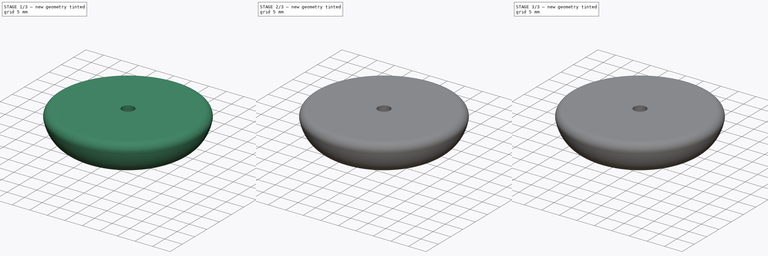
[diagram: build sequence overview — one tinted view per stage of 3, left to right]
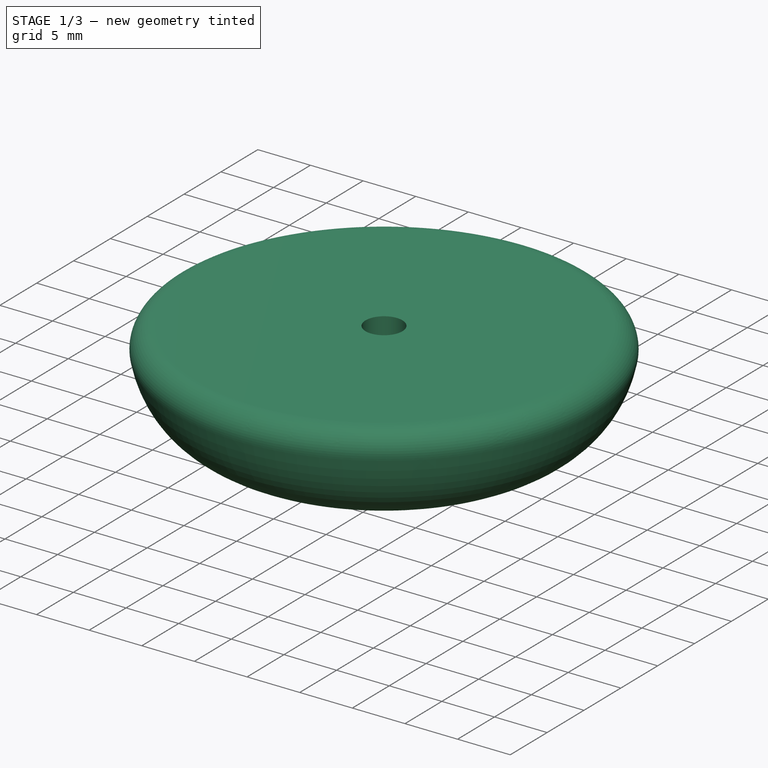
[diagram: stage 1 of 3 — iso view after this stage's code; geometry added in this stage tinted green]
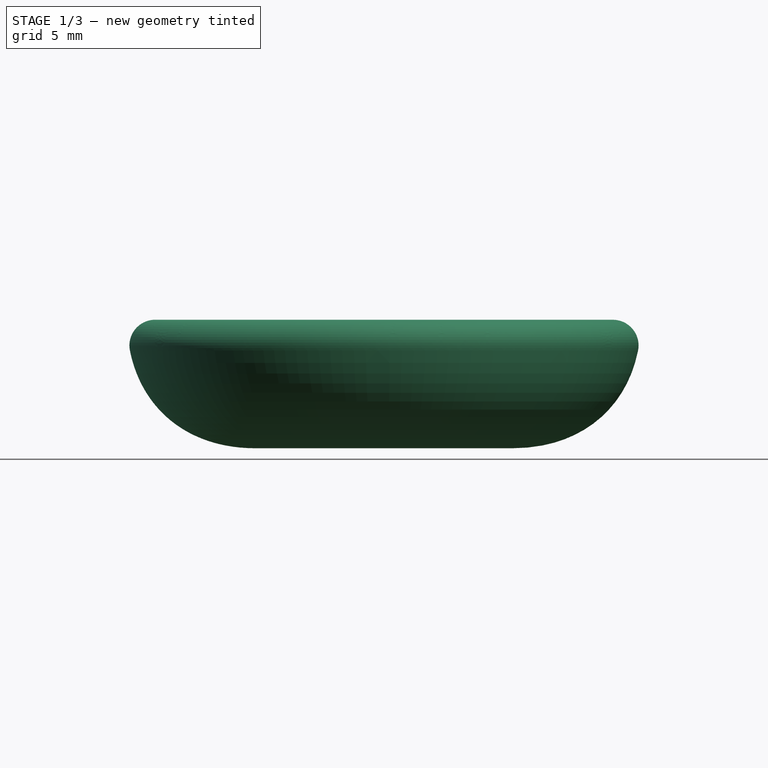
[diagram: stage 1 of 3 — front view after this stage's code; geometry added in this stage tinted green]
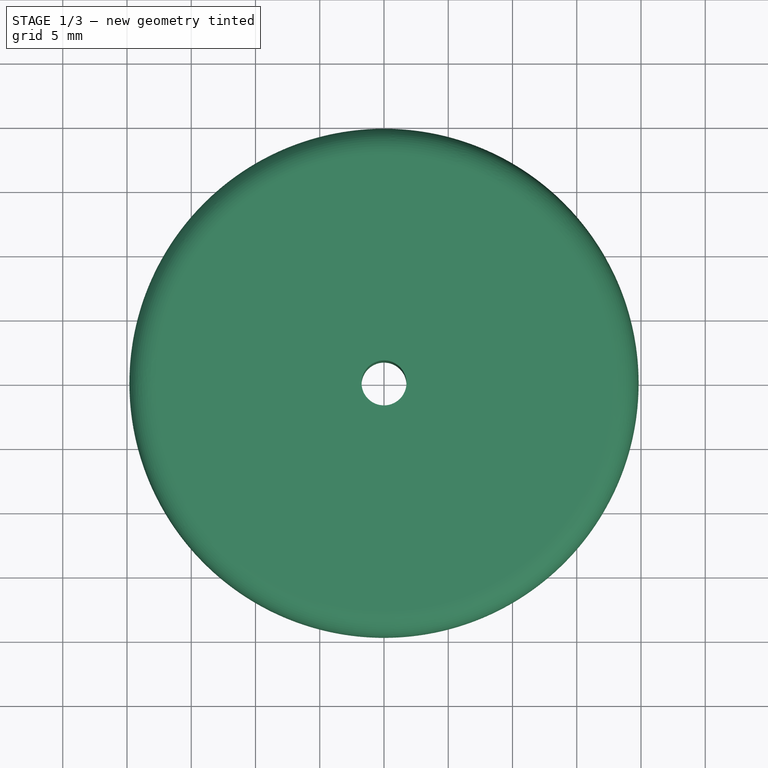
[diagram: stage 1 of 3 — top view after this stage's code; geometry added in this stage tinted green]
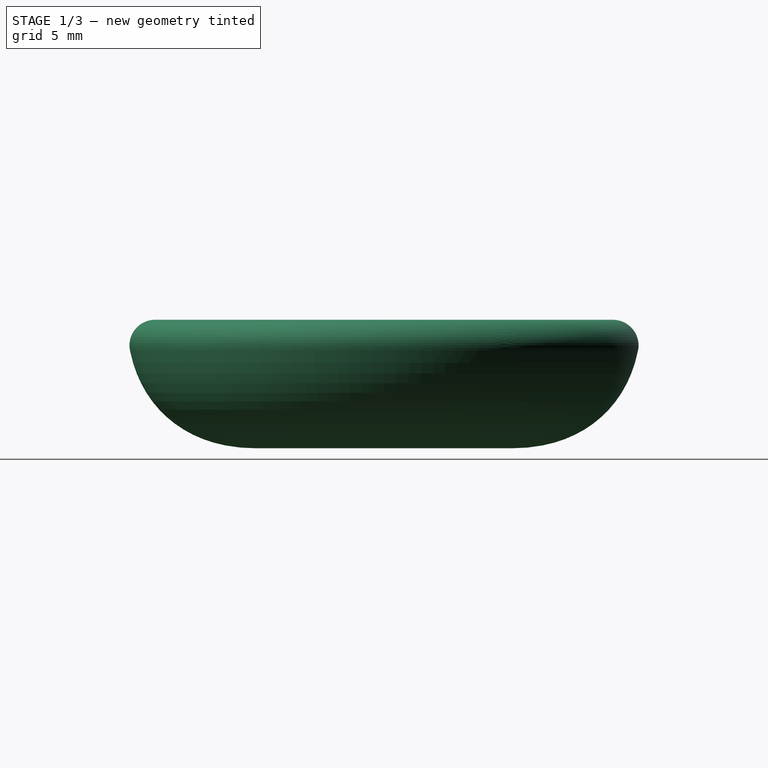
[diagram: stage 1 of 3 — right view after this stage's code; geometry added in this stage tinted green]
FCSTD DOCUMENT  (FreeCAD 0.18.4R)
Label: YoYo
License: All rights reserved
LicenseURL: http://en.wikipedia.org/wiki/All_rights_reserved
objects: Sketcher::SketchObject×5, PartDesign::Body×4, PartDesign::Pocket×3, PartDesign::FeatureBase×2, PartDesign::Revolution×1, Spreadsheet::Sheet×1, PartDesign::Pad×1, PartDesign::Fillet×1, App::Part×1
note: 22 computed .brp shape members not serialized (recipe doc carries the construction recipe); baked Part::Feature solids carry a one-line shape summary decoded from their .brp

FEATURE [Sketcher::SketchObject] Sketch
  MapMode = 5
  Placement = pos=(0,0,0) rot=(1,0,0;1.5708rad)
  Support = -> [XZ_Plane001]
  sketch-geometry (12):
    g0: LineSegment StartX=0 StartY=10 StartZ=0 EndX=-20 EndY=10 EndZ=0
    g1: LineSegment StartX=0 StartY=10 StartZ=0 EndX=0 EndY=0 EndZ=0
    g2: LineSegment StartX=0 StartY=0 StartZ=0 EndX=-10 EndY=0 EndZ=0
    g3-g6: Circle [constr] x4 (B-spline internal-alignment scaffolding for g7; pole/knot coordinates omitted)
    g7: BSplineCurve PolesCount=4 KnotsCount=2 Degree=3 IsPeriodic=0
    g8: GeomPoint [constr] X=-10 Y=0 Z=0
    g9: GeomPoint [constr] X=-20 Y=10 Z=0
    g10: LineSegment [constr] StartX=-16 StartY=0 StartZ=0 EndX=-10 EndY=0 EndZ=0
    g11: LineSegment [constr] StartX=-20 StartY=10 StartZ=0 EndX=-20 EndY=4 EndZ=0
  constraints (26):
    c: Coincident(g2,g1)
    c: Horizontal(g2)
    c: Coincident(g7,g2)
    c: Radius(g3) = 2
    c: Equal(g3,g4)
    c: Equal(g3,g5)
    c: Equal(g3,g6)
    c: Coincident(g7,g0)
    c: InternalAlignment(g3-g6 -> g7) x4
    c: InternalAlignment(g8,g7)
    c: InternalAlignment(g9,g7)
    c: Coincident(g10,g4)
    c: Coincident(g10,g2)
    c: Horizontal(g10)
    c: Coincident(g11,g0)
    c: Coincident(g11,g5)
    c: Vertical(g11)
    c: DistanceX(g0,g1) = 20
    c: DistanceX(g2,g2) = 10
    c: Equal(g10,g11)
    c: DistanceX(g10,g10) = 6
    c: Horizontal(g0)
    c: DistanceY(g1,g0) = 10  'Height'
    c: Coincident(g1,g-1)
    c: Vertical(g1)
    c: Coincident(g1,g0)
FEATURE [PartDesign::Revolution] Revolution
  Angle = 360
  Axis = (0,-2e-16,1)
  Base = (0,0,0)
  Placement = pos=(0,0,0) rot=(1,0,0;1.5708rad)
  Profile = -> Sketch
  ReferenceAxis = -> Sketch [V_Axis]
FEATURE [Sketcher::SketchObject] Sketch001
  MapMode = 5
  Support = -> [XY_Plane001]
  expr: Constraints[1] = Screws.M3Radius
  sketch-geometry (1):
    g0: Circle CenterX=0 CenterY=0 CenterZ=0 NormalX=0 NormalY=0 NormalZ=1 AngleXU=0 Radius=1.75
  constraints (2):
    c: Coincident(g0,g-1)
    c: Radius(g0) = 1.75
FEATURE [PartDesign::Pocket] Pocket
  BaseFeature = -> Revolution
  Length = 5
  Length2 = 100
  Placement = pos=(0,0,0) rot=(1,0,0;1.5708rad)
  Profile = -> Sketch001
  Reversed = true
  Type = 1
FEATURE [PartDesign::Body] Body003
  Group = -> [Sketch004,Pad]
  Origin = -> Origin004
  Tip = -> Pad
FEATURE [PartDesign::Fillet] Fillet
  Base = -> Pocket [Edge1]
  BaseFeature = -> Pocket
  Placement = pos=(0,0,0) rot=(1,0,0;1.5708rad)
  Radius = 2
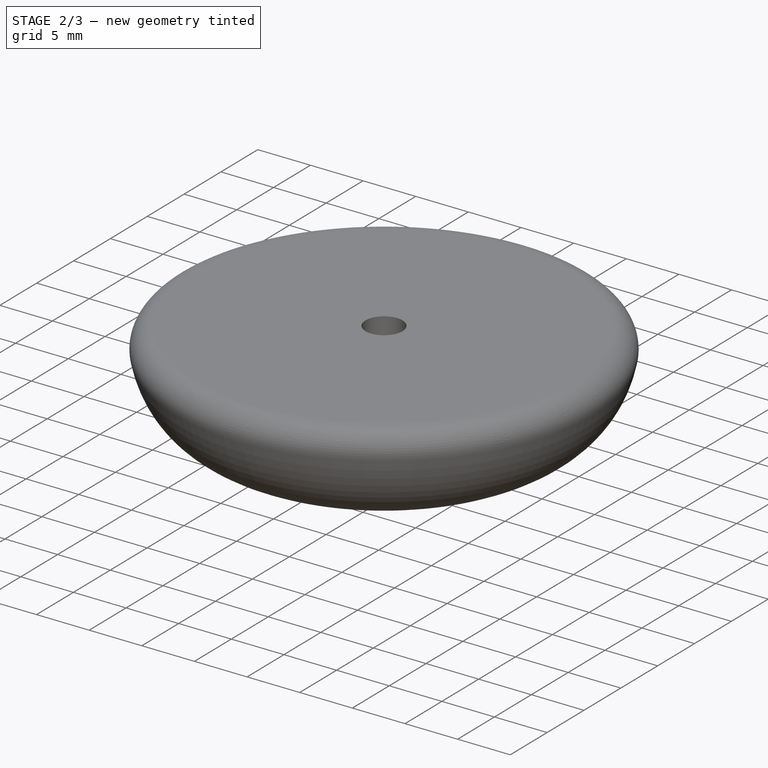
[diagram: stage 2 of 3 — iso view after this stage's code; geometry added in this stage tinted green]
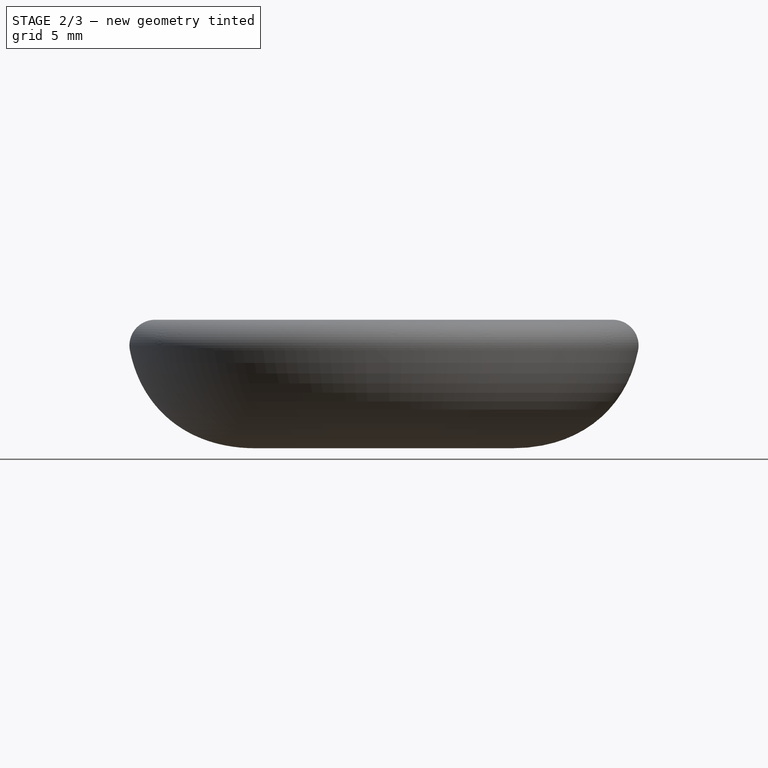
[diagram: stage 2 of 3 — front view after this stage's code; geometry added in this stage tinted green]
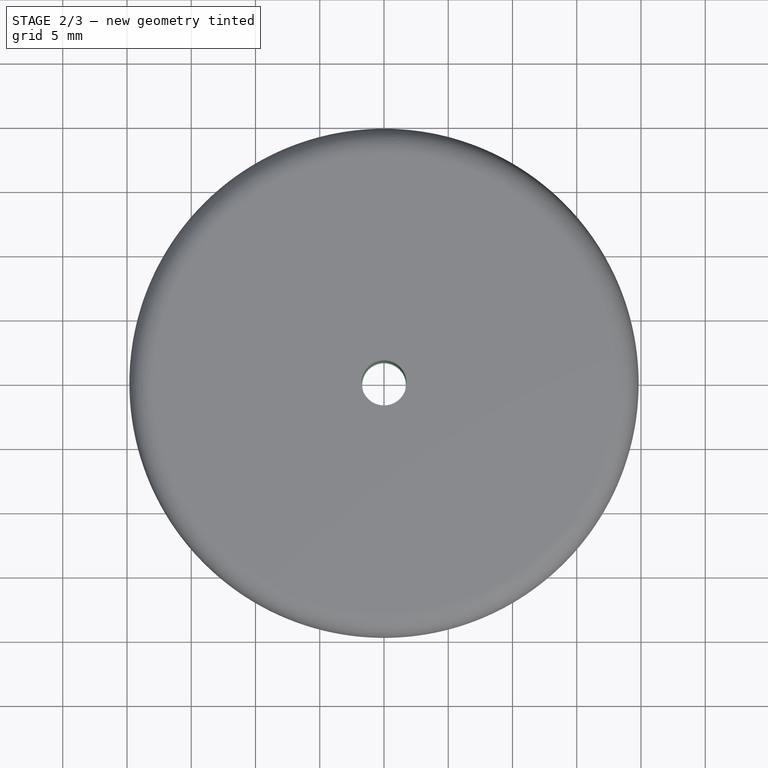
[diagram: stage 2 of 3 — top view after this stage's code; geometry added in this stage tinted green]
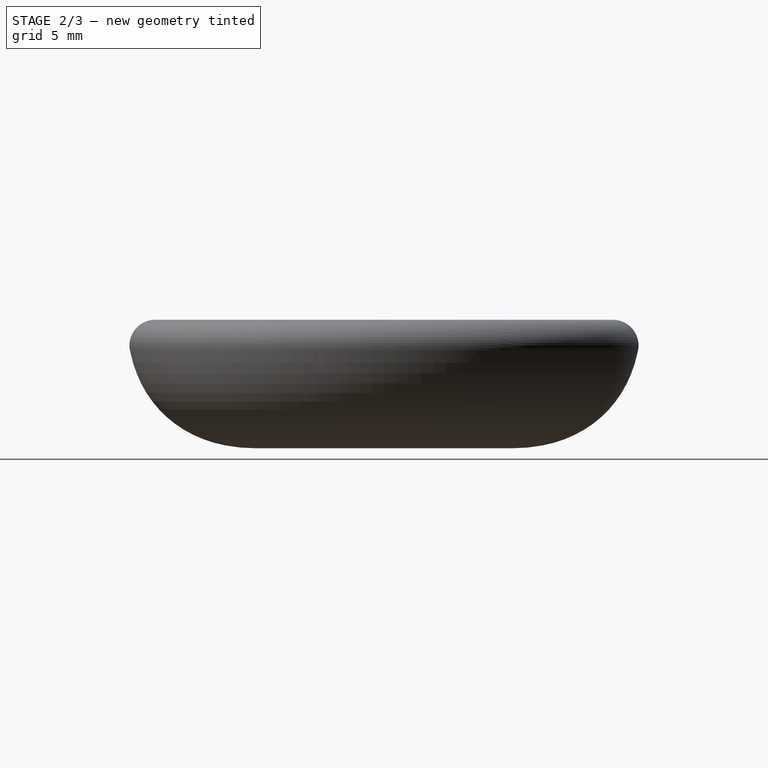
[diagram: stage 2 of 3 — right view after this stage's code; geometry added in this stage tinted green]
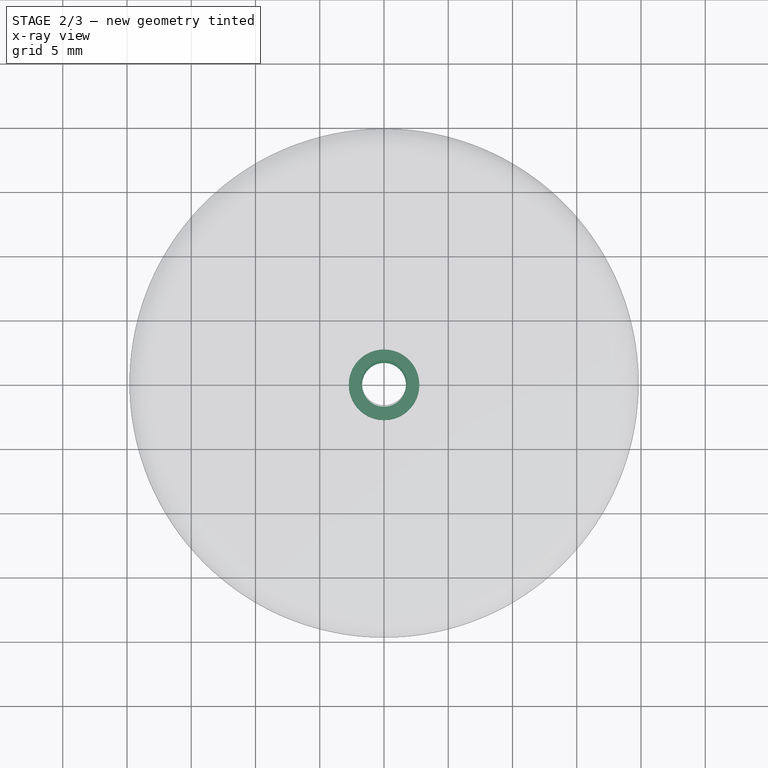
[diagram: stage 2 of 3 — x-ray composite at the top view; earlier geometry ghosted, this stage's added geometry solid]
FEATURE [Spreadsheet::Sheet] Spreadsheet001  label="Screws"
  cells = B2=M3Radius; C2(M3Radius)==1.75mm; B3=M3HeadRadius; C3(M3HeadRadius)==3mm; B4=M3HeadHeight; C4(M3HeadHeight)==2.95mm; B5=M3WasherRadius; C5(M3WasherRadius)==3.7mm; B6=M3WasherHeight; C6(M3WasherHeight)==0.5mm; B7=M3NutRadius; C7(M3NutRadius)==3.4mm; B8=M3NutHeight; C8(M3NutHeight)==2.75mm; B9=M3NylocNutHeight; C9(M3NylocNutHeight)==4.1mm; B10=M3NutDuctWidth; C10(M3NutDuctWidth)==5.85mm; B11=M4Radius; C11(M4Radius)==2.2mm; B12=M4HeadRadius; C12(M4HeadRadius)==3.75mm; B13=M4HeadHeight; C13(M4HeadHeight)==4mm; B14=M4WasherRadius; C14(M4WasherRadius)==4.7mm; B15=M4NutRadius; C15(M4NutRadius)==4.25mm; B16=M4NutHeight; C16(M4NutHeight)==3.3mm; B17=M4NutDuctWidth; C17(M4NutDuctWidth)==7.1mm; B18=M5Radius; C18(M5Radius)==2.66mm; B19=M5HeadRadius; C19(M5HeadRadius)==4.5mm; B20=M5HeadHeight; C20(M5HeadHeight)==5mm; B21=M5NutRadius; C21(M5NutRadius)==4.75mm; B22=M5NutHeight; C22(M5NutHeight)==4mm; B24=M6Radius; C24(M6Radius)==3.15mm; B25=M6HeadRadius; C25(M6HeadRadius)==5.5mm; B32=
FEATURE [Sketcher::SketchObject] Sketch002
  MapMode = 5
  Support = -> [XY_Plane002]
  expr: Constraints[1] = Screws.M3HeadRadius
  sketch-geometry (1):
    g0: Circle CenterX=0 CenterY=0 CenterZ=0 NormalX=0 NormalY=0 NormalZ=1 AngleXU=0 Radius=3
  constraints (2):
    c: Coincident(g0,g-1)
    c: Radius(g0) = 3
FEATURE [Sketcher::SketchObject] Sketch003
  MapMode = 5
  Support = -> [XY_Plane003]
  expr: Constraints[19] = Screws.M3NutRadius
  sketch-geometry (7):
    g0: LineSegment StartX=3.4 StartY=0 StartZ=0 EndX=1.7 EndY=2.94449 EndZ=0
    g1: LineSegment StartX=1.7 StartY=2.94449 StartZ=0 EndX=-1.7 EndY=2.94449 EndZ=0
    g2: LineSegment StartX=-1.7 StartY=2.94449 StartZ=0 EndX=-3.4 EndY=0 EndZ=0
    g3: LineSegment StartX=-3.4 StartY=0 StartZ=0 EndX=-1.7 EndY=-2.94449 EndZ=0
    g4: LineSegment StartX=-1.7 StartY=-2.94449 StartZ=0 EndX=1.7 EndY=-2.94449 EndZ=0
    g5: LineSegment StartX=1.7 StartY=-2.94449 StartZ=0 EndX=3.4 EndY=0 EndZ=0
    g6: Circle [constr] CenterX=0 CenterY=0 CenterZ=0 NormalX=0 NormalY=0 NormalZ=1 AngleXU=0 Radius=3.4
  constraints (16):
    c: Coincident(g0,g1)
    c: Coincident(g1,g2)
    c: Coincident(g2,g3)
    c: Coincident(g3,g4)
    c: Coincident(g4,g5)
    c: Coincident(g5,g0)
    c: Equal(g0, g1-g5) x5
    c: PointOnObject(g0,g6)
    c: PointOnObject(g1,g6)
    c: PointOnObject(g2,g6)
    c: PointOnObject(g3,g6)
    c: PointOnObject(g4,g6)
    c: PointOnObject(g5,g6)
    c: Coincident(g6,g-1)
    c: Horizontal(g1)
    c: Radius(g6) = 3.4
FEATURE [Sketcher::SketchObject] Sketch004
  MapMode = 5
  Support = -> [XY_Plane004]
  expr: Constraints[1] = Constraints.Ri + 1.05mm
  sketch-geometry (2):
    g0: Circle CenterX=0 CenterY=0 CenterZ=0 NormalX=0 NormalY=0 NormalZ=1 AngleXU=0 Radius=2.75
    g1: Circle CenterX=0 CenterY=0 CenterZ=0 NormalX=0 NormalY=0 NormalZ=1 AngleXU=0 Radius=1.7
  constraints (4):
    c: Coincident(g0,g-1)
    c: Radius(g0) = 2.75
    c: Coincident(g1,g0)
    c: Radius(g1) = 1.7  'Ri'
FEATURE [PartDesign::Pad] Pad
  Length = 1.5
  Length2 = 100
  Profile = -> Sketch004
  Type = 0
FEATURE [PartDesign::FeatureBase] Clone001
  BaseFeature = -> Body
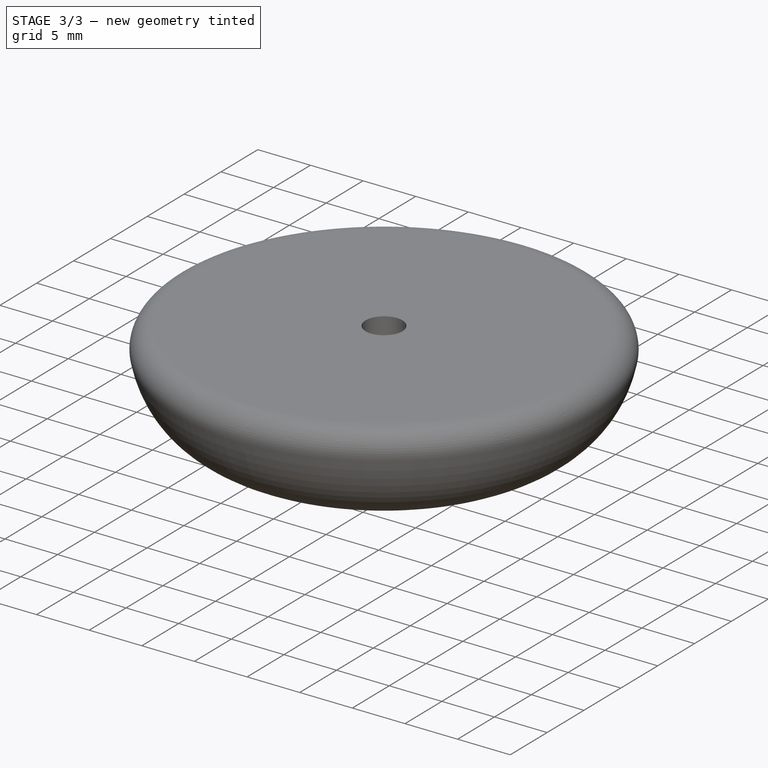
[diagram: stage 3 of 3 — iso view after this stage's code; geometry added in this stage tinted green]
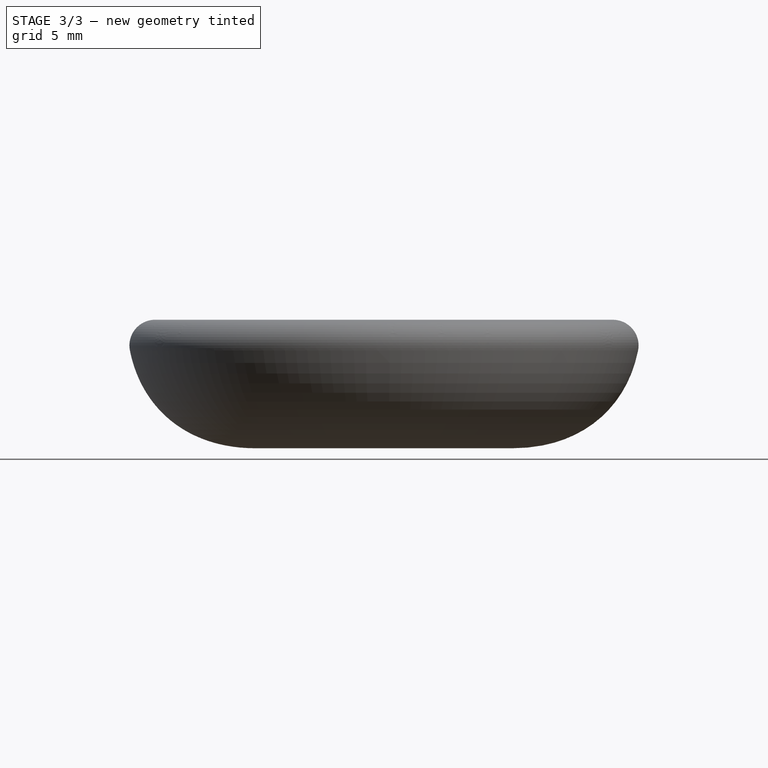
[diagram: stage 3 of 3 — front view after this stage's code; geometry added in this stage tinted green]
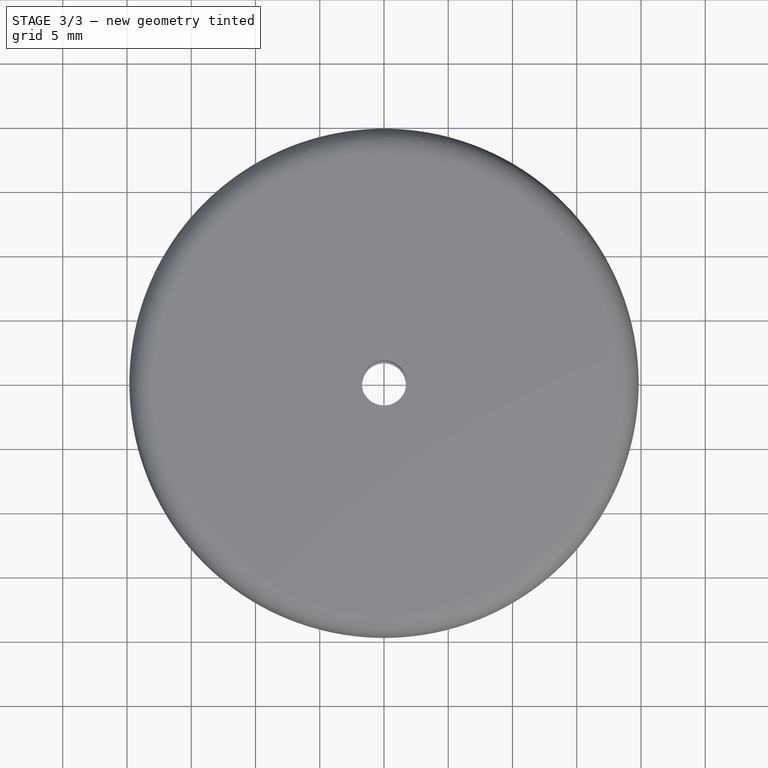
[diagram: stage 3 of 3 — top view after this stage's code; geometry added in this stage tinted green]
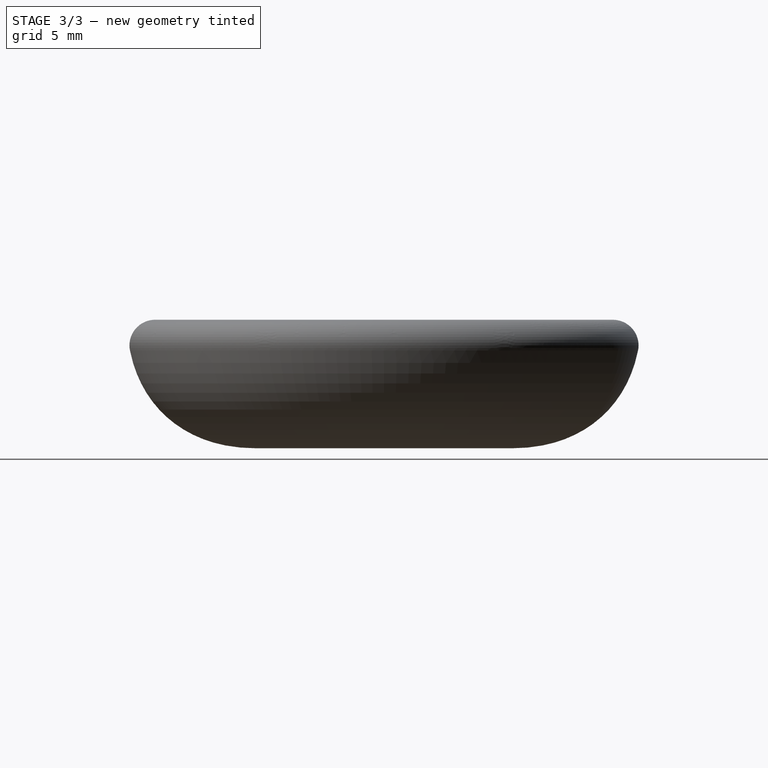
[diagram: stage 3 of 3 — right view after this stage's code; geometry added in this stage tinted green]
FEATURE [PartDesign::Body] Body
  Group = -> [Sketch,Revolution,Sketch001,Pocket,Fillet]
  Origin = -> Origin001
  Tip = -> Fillet
FEATURE [PartDesign::FeatureBase] Clone
  BaseFeature = -> Body
FEATURE [PartDesign::Pocket] Pocket001
  BaseFeature = -> Clone
  Length = 7
  Length2 = 100
  Profile = -> Sketch002
  Reversed = true
  Type = 0
  expr: Length = Sketch.Constraints.Height - 3mm
FEATURE [PartDesign::Body] Body001
  BaseFeature = -> Body
  Group = -> [Clone,Sketch002,Pocket001]
  Origin = -> Origin002
  Tip = -> Pocket001
FEATURE [PartDesign::Pocket] Pocket002
  BaseFeature = -> Clone001
  Length = 7
  Length2 = 100
  Profile = -> Sketch003
  Reversed = true
  Type = 0
  expr: Length = Sketch.Constraints.Height - 3mm
FEATURE [PartDesign::Body] Body002
  BaseFeature = -> Body
  Group = -> [Clone001,Sketch003,Pocket002]
  Origin = -> Origin003
  Tip = -> Pocket002
FEATURE [App::Part] Part
  Group = -> [Body,Body001,Body002,Body003]
  Origin = -> Origin
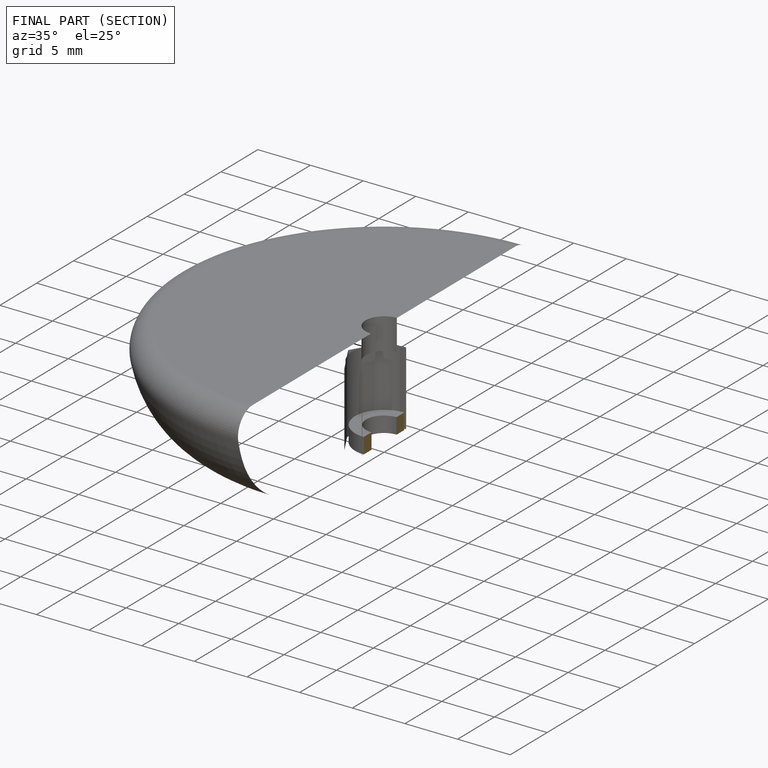
[diagram: finished part — half-section view (interior)]
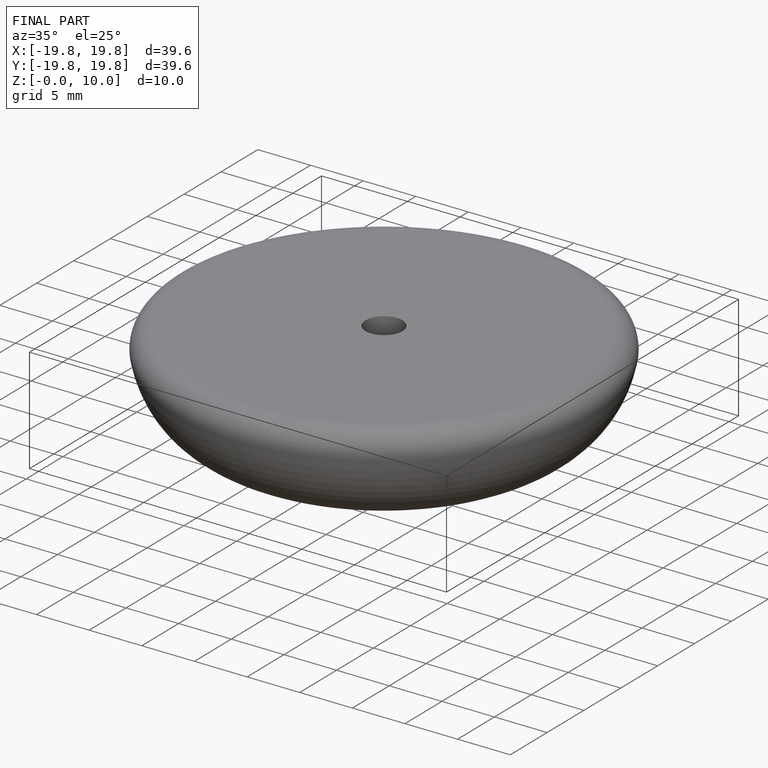
[diagram: finished part — iso view with bounding-box wireframe]
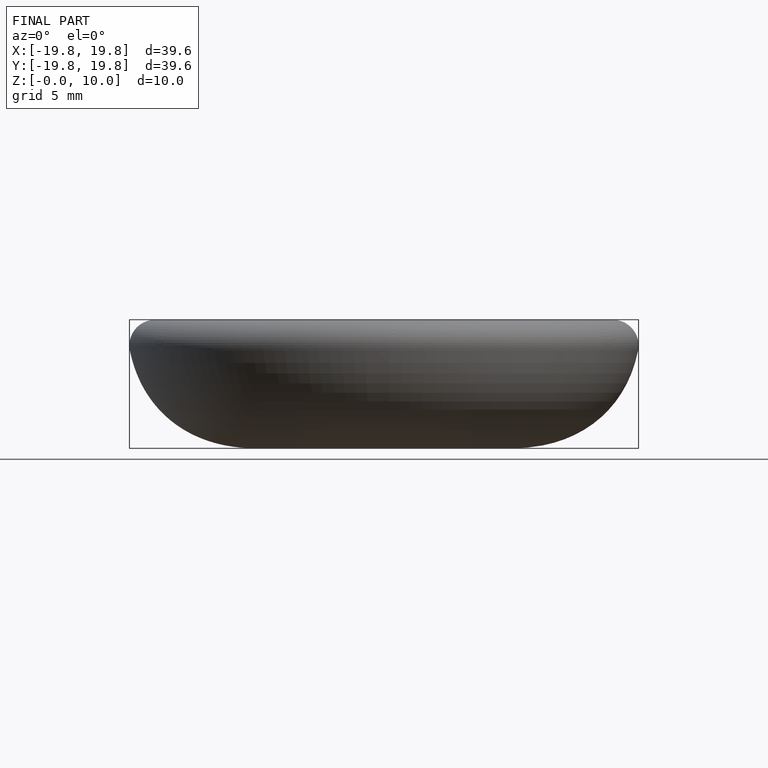
[diagram: finished part — front view with bounding-box wireframe]
